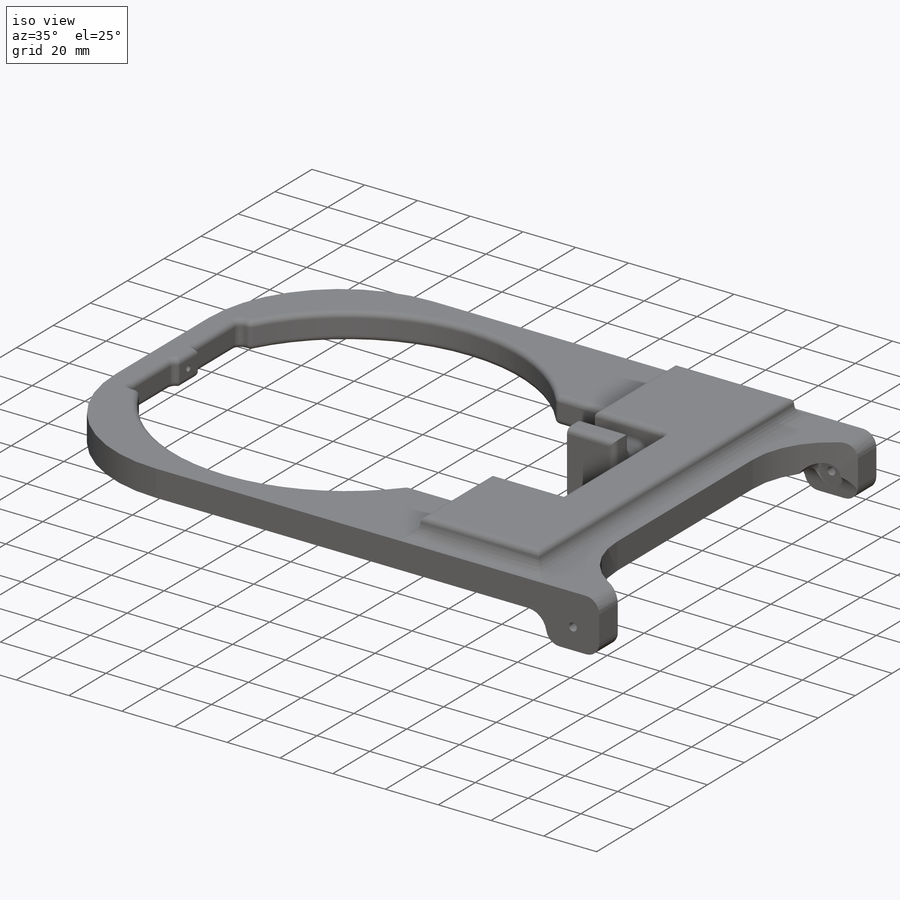
[diagram: iso view]
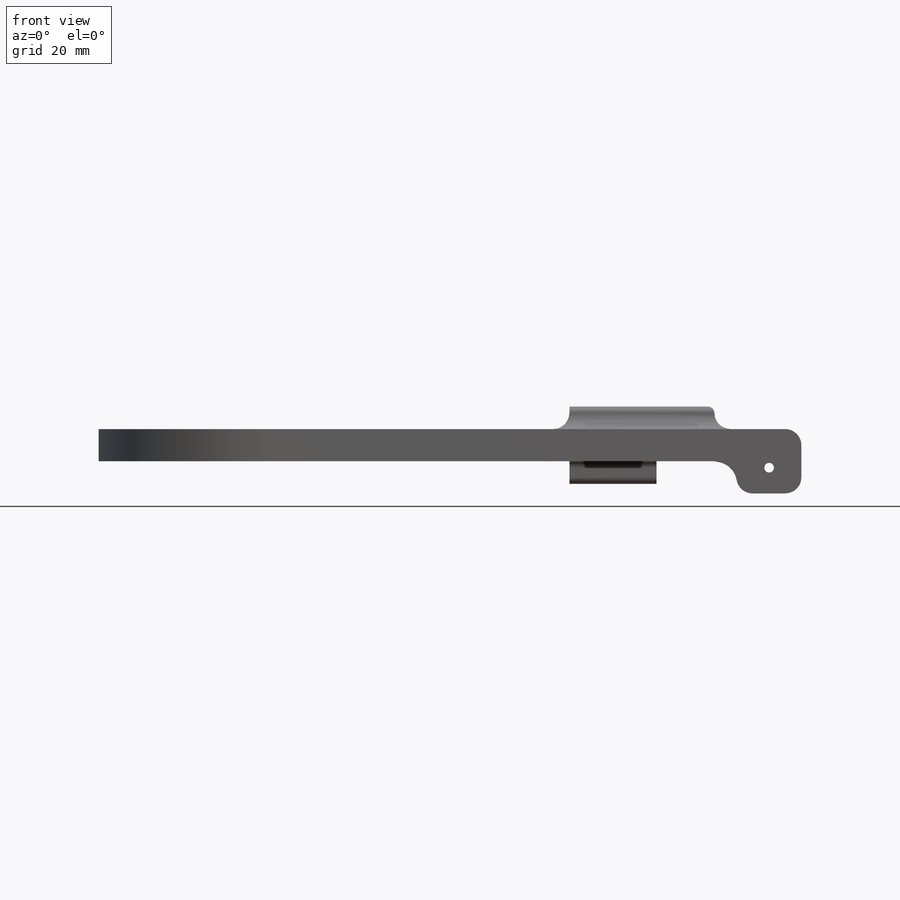
[diagram: front view]
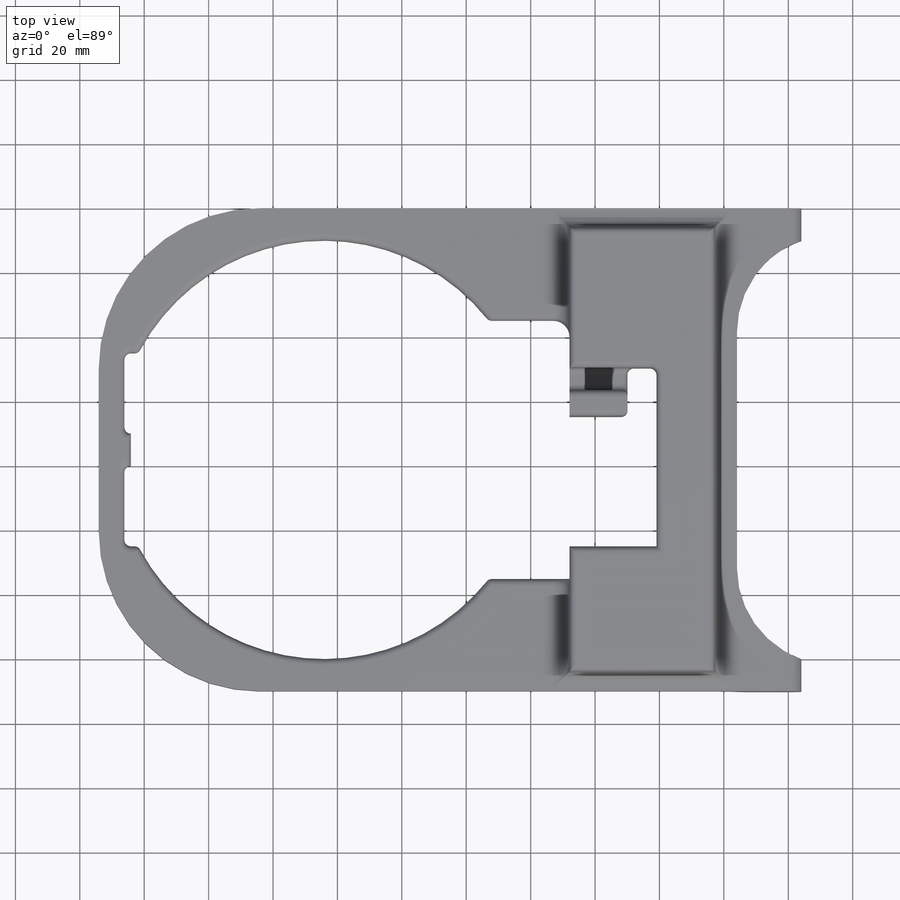
[diagram: top view]
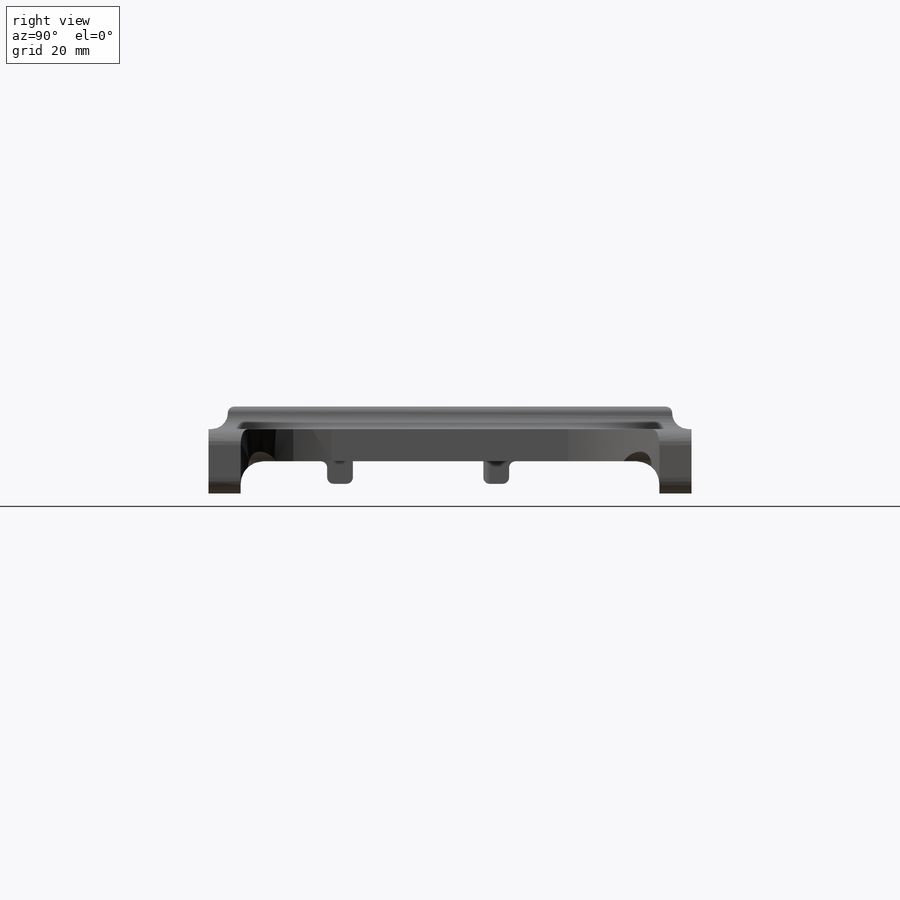
[diagram: right view]
SOLIDWORKS PART (.sldprt)
format: sldprt  version: not decoded by parser v0  size: 1,329,152 bytes
history: native  units: mm
features: sketch x9, fillet x8, extrude x5, cut_extrude x4, material x1 (+16 scaffold rows collapsed)
feature tree (43):
  scaffold x16  (default folders/planes/origin — collapsed)
  material  "Delrin 2700 NC010, Low Viscosity Acetal Copolymer (SS)"
  sketch  "Sketch2"  dims[c1.D1=130.0mm c1.D2=~56.658665mm c1.D6=~53.702753mm c1.D7=5.0mm c1.D8=5.0mm c2.D2=110.0mm c2.D3=10.0mm c2.D4=15.0mm c2.D5=85.0mm c2.D6=20.0mm c2.D8=7.5mm c2.D9=2.0mm c2.D11=10.0mm c2.D12=20.0mm c3.D2=40.5mm c3.D4=27.0mm c3.D5=5.0mm c3.D6=43.92mm c3.D12=10.35mm c3.D13=118.2mm c3.D14=43.22mm c4.D6=120.0mm c4.D13=160.0mm c4.D15=10.0mm c4.D16=160.0mm c5.D13=25.15mm c5.D9=25.0mm c6.D13=10.0mm c6.D16=43.22mm c6.D14=43.22mm c7.D16=40.5mm c7.D14=43.22mm c7.D15=15.0mm c8.D16=20.0mm c8.D17=8.0mm c8.D18=20.0mm c8.D19=9.0mm c9.D16=10.0mm c9.D20=75.0mm c9.D7=10.0mm c9.D8=75.0mm c10.D7=75.0mm c10.D10=25.0mm c10.D16=50.5mm c10.D6=50.0deg]
  extrude  "Boss-Extrude4"  Depth=10mm
  sketch  "Sketch6"  dims[c1.D1=8.0mm c1.D2=6.0mm c1.D3=6.0mm c1.D4=45.0mm c2.D1=0.0mm]
  extrude  "Boss-Extrude5"  Depth=7mm
  sketch  "Sketch7"  dims[D1=8.0mm D2=8.0mm]
  extrude  "Boss-Extrude6"  Depth=7mm
  sketch  "Sketch8"  dims[D1=2.2mm]
  cut_extrude  "Cut-Extrude1"  [1 undecoded]
  fillet  "Fillet4"  Radius=2mm
  fillet  "Fillet5"  Radius=50mm
  fillet  "Fillet6"  Radius=5mm
  fillet  "Fillet7"  Radius=2mm
  sketch  "Sketch9"  dims[D1=7.0mm]
  cut_extrude  "Cut-Extrude2"  Depth=7mm
  fillet  "Fillet8"  Radius=2mm
  sketch  "Sketch10"  dims[D1=10.0mm]
  extrude  "Boss-Extrude7"  Depth=20mm
  sketch  "Sketch11"  dims[D1=10.0mm]
  extrude  "Boss-Extrude8"  Depth=10mm
  sketch  "Sketch12"  dims[D1=3.0mm D2=7.0mm D3=10.0mm]
  cut_extrude  "Cut-Extrude3"  [1 undecoded]
  fillet  "Fillet10"  Radius=30mm
  fillet  "Fillet11"  Radius=7mm
  fillet  "Fillet12"  Radius=5mm
  sketch  "Sketch13"  dims[D1=10.0mm]
  cut_extrude  "Cut-Extrude4"  [1 undecoded]
decode coverage: 23 of 26 modeling features carry decoded parameters
note: ~ marks probable driven/reference dimensions
note: 3 parameter values undecoded
summary: no parameter record found for 3 features
note: suppression state not decoded; provenance and decode notes live in map.json
